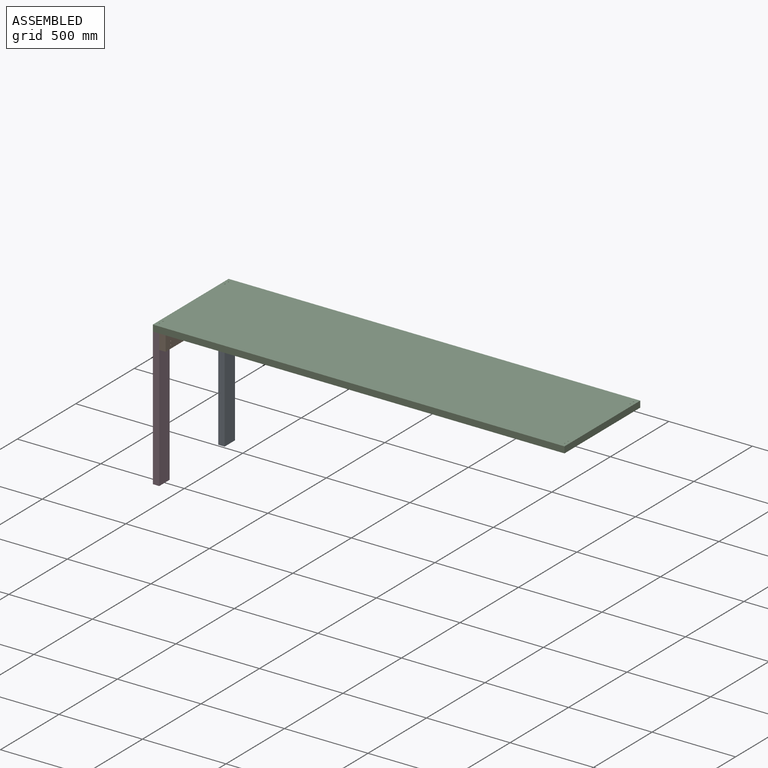
[diagram: assembled view]
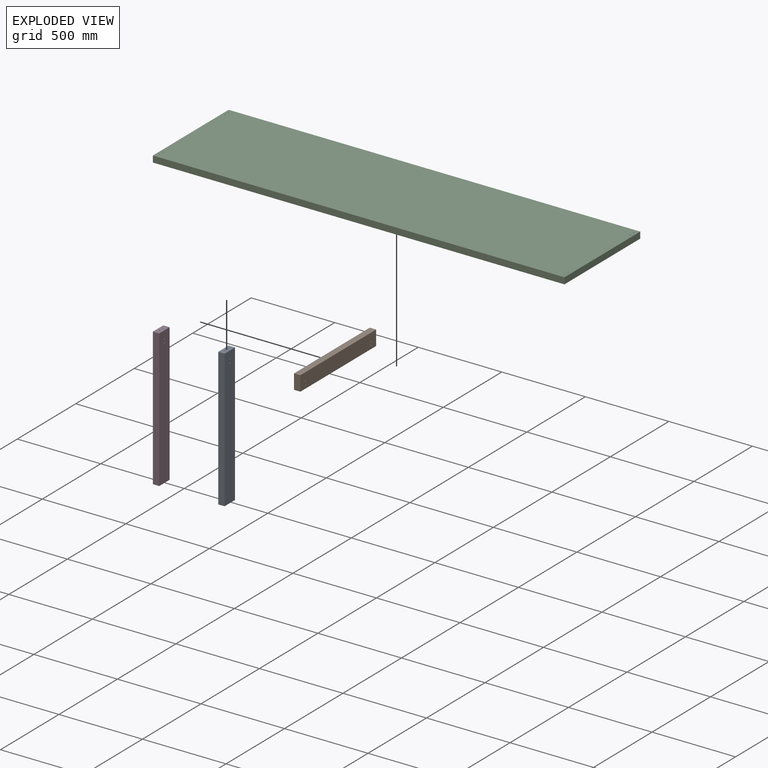
[diagram: exploded view]
GUIDED TOUR — MATED ASSEMBLY (Onshape document a96cc10d83abf65ffa4fd4cf, AutoMate assembly a96cc10d83abf65ffa4fd4cf_02e268fd3e05aa0f3158a6e1_424648849228a060c29fd1e6_default)

This assembly has 4 components, labeled P0..P3 below (a component is one placed occurrence of a part; the same part can appear more than once), held together by 5 mates. A mate is a constraint between two components; its type names the relative motion it leaves free:
  REVOLUTE — leaves rotation about the listed axis free (a hinge).
Axis/direction vectors are unit vectors and 'through' points are millimeter coordinates, both in the assembly's world frame.

MATES
  1. REVOLUTE "Revolute 4": P0 <-> P2, axis (0.000, 0.000, 1.000) through (-1188.94, 432.31, -49.95) mm
  2. REVOLUTE "Revolute 3": P0 <-> P2, axis (0.000, 0.000, 1.000) through (-1188.94, 402.68, -49.95) mm
  3. REVOLUTE "Revolute 1": P3 <-> P2, axis (0.000, 0.000, 1.000) through (-1188.94, -156.12, -49.95) mm
  4. REVOLUTE "Revolute 2": P3 <-> P2, axis (0.000, 0.000, 1.000) through (-1188.94, -126.49, -49.95) mm
  5. REVOLUTE "Revolute 5": P1 <-> P0, axis (-1.000, 0.000, 0.000) through (-1169.89, 417.49, -96.52) mm

ASSEMBLY ORDER
  1. P3 — the base component [order verified]
  2. P0 [order verified]
  3. P1 [order verified]
  4. P2 [order verified]
Order-tag legend:
  [order verified] — this step's position reverses a verified removal order: the component was checked to insert without passing through the ones already placed.

Of the 4 components, 2 carry the full construction recipe — the FeatureScript program that regenerates the part's solid from scratch; the rest are supplied as boundary geometry only.
Each toured component is shown spotlighted twice — in the assembled view, then in the exploded view, where a leader line traces a displaced component back to its assembled socket (saturated green if recipe-attached, orange if geometry-only; every other component desaturated gray) — followed by its recipe or geometry summary and the mates that hold it.
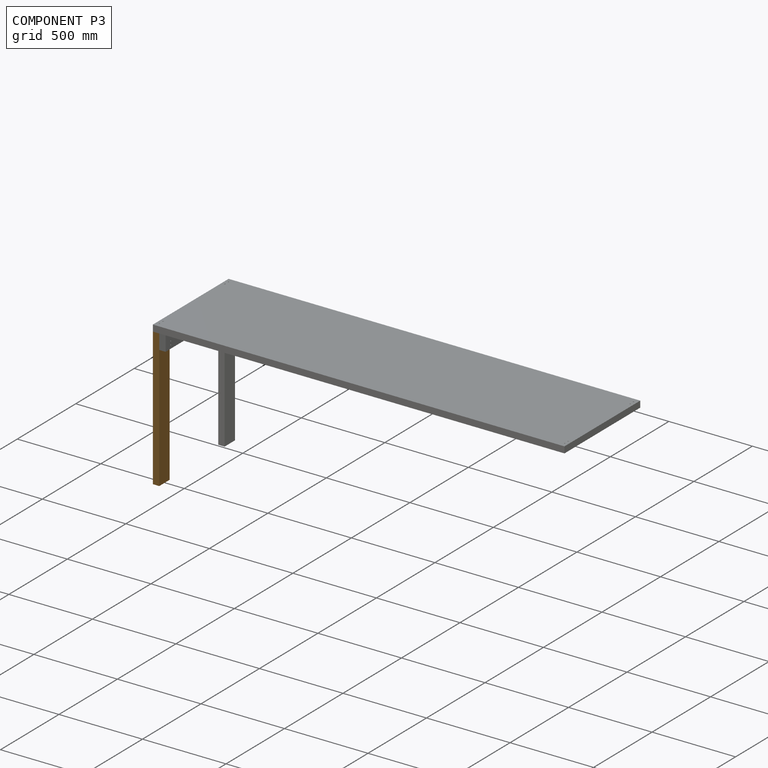
[diagram: component P3 — assembled]
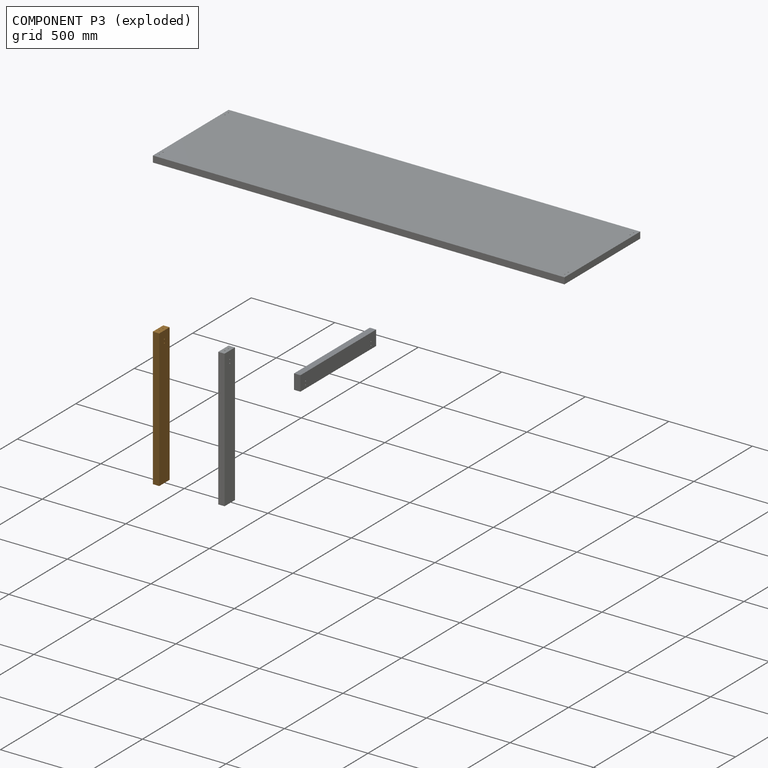
[diagram: component P3 — exploded]
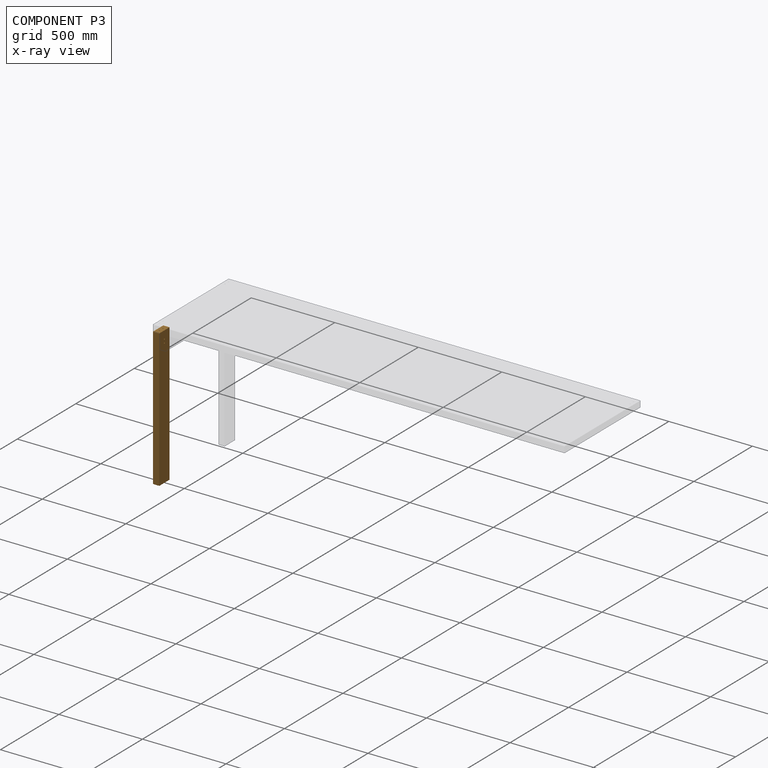
[diagram: component P3 — x-ray view]
COMPONENT P3 — geometry summary (no construction recipe available for this part):
  bounding box: 825.5 x 88.9 x 38.1 mm
  B-rep topology: 1 solid, 12 faces, 48 edges
  volume: 2791693 mm^3 (100% of its bounding box)
  symmetry: 2-fold rotationally symmetric about the z axis; mirror-symmetric across its x mid-plane, y mid-plane
Held by: REVOLUTE mate "Revolute 1" to P2; REVOLUTE mate "Revolute 2" to P2.
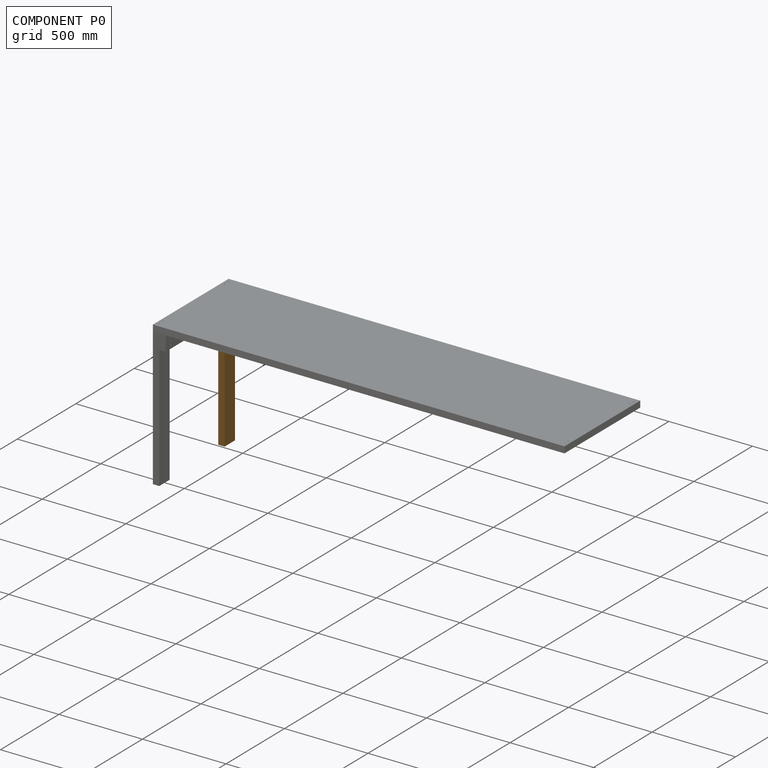
[diagram: component P0 — assembled]
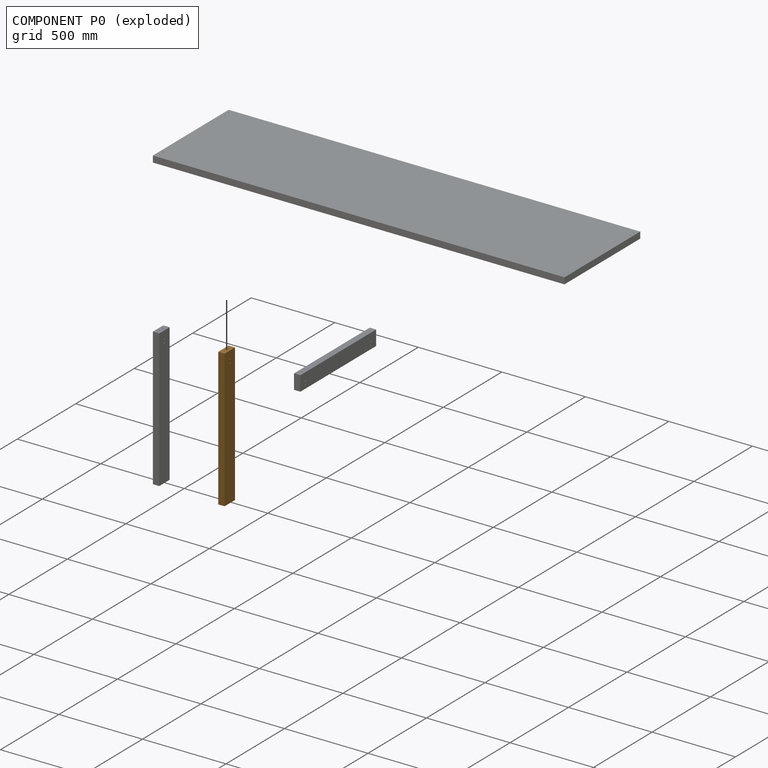
[diagram: component P0 — exploded]
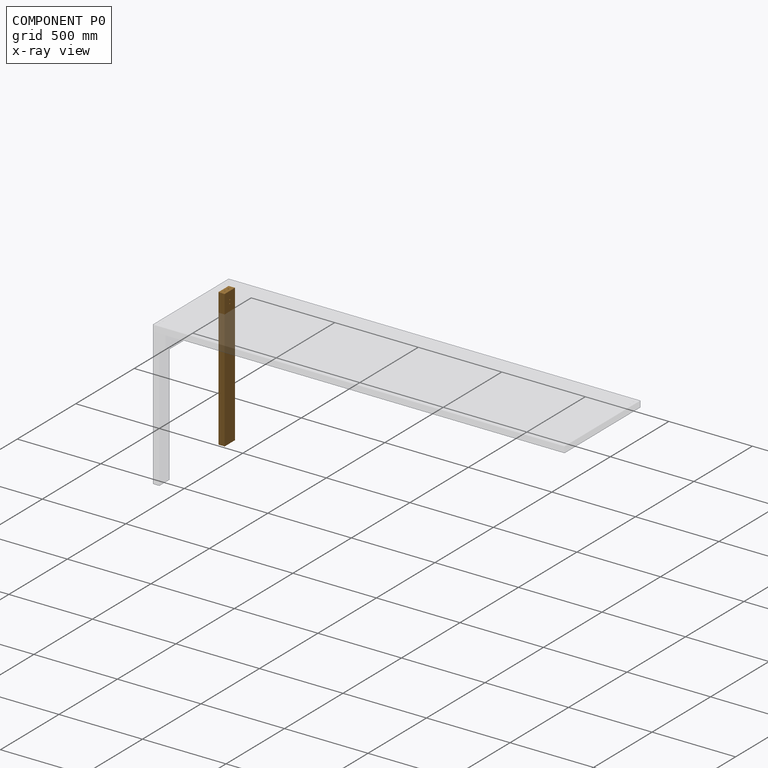
[diagram: component P0 — x-ray view]
COMPONENT P0 — geometry summary (no construction recipe available for this part):
  bounding box: 825.5 x 88.9 x 38.1 mm
  B-rep topology: 1 solid, 12 faces, 48 edges
  volume: 2791693 mm^3 (100% of its bounding box)
  symmetry: 2-fold rotationally symmetric about the z axis; mirror-symmetric across its x mid-plane, y mid-plane
Held by: REVOLUTE mate "Revolute 4" to P2; REVOLUTE mate "Revolute 3" to P2; REVOLUTE mate "Revolute 5" to P1.
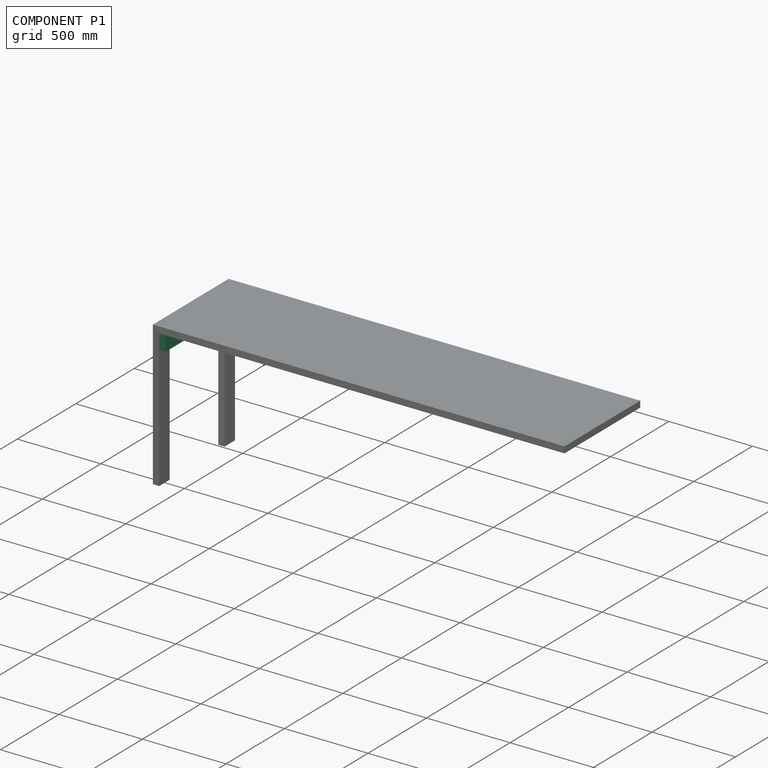
[diagram: component P1 — assembled]
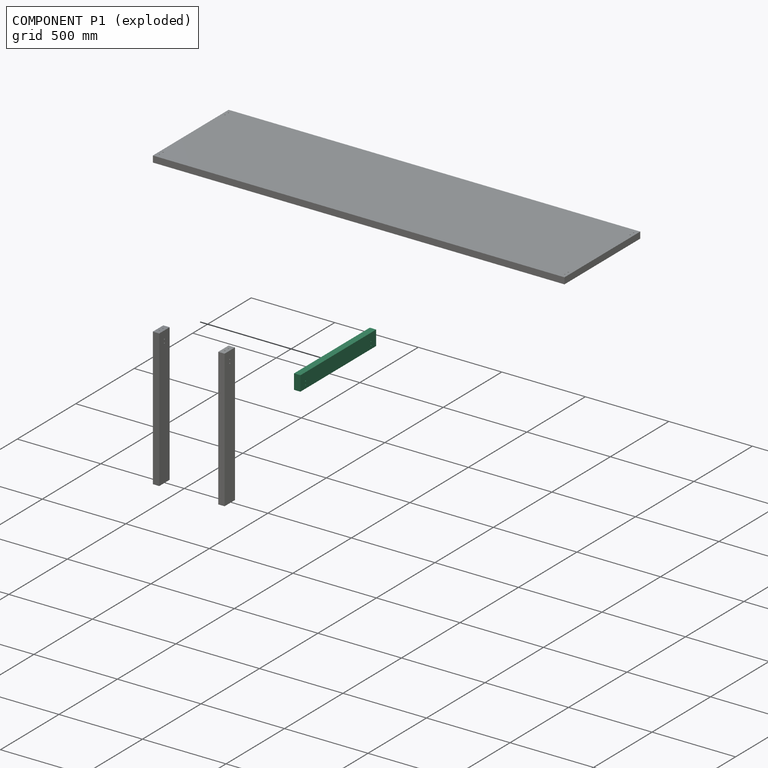
[diagram: component P1 — exploded]
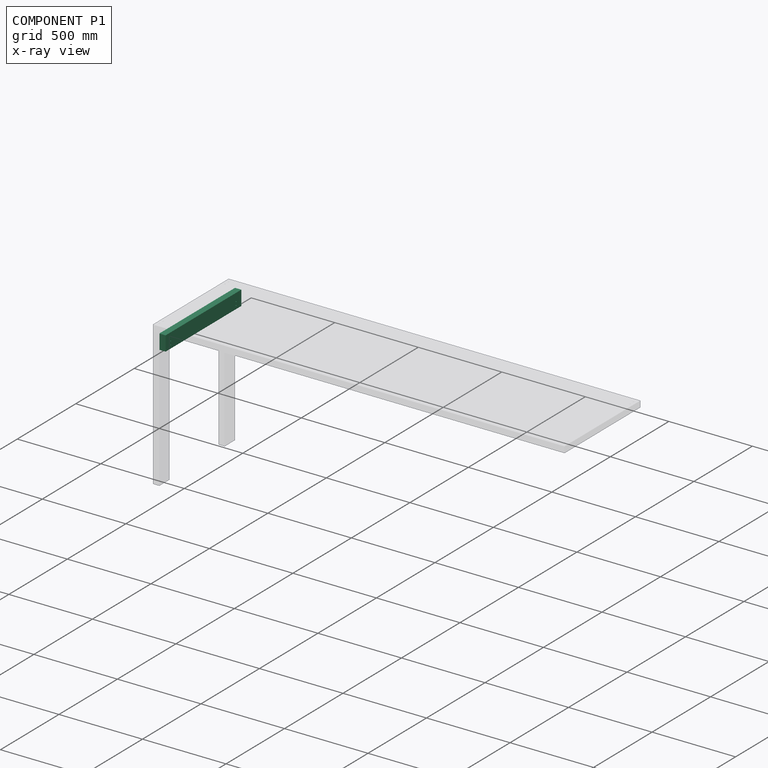
[diagram: component P1 — x-ray view]
COMPONENT P1 — recipe-attached (CADFS 00856207, mesh-verified: the recipe's output STEP matches this component's geometry to below the mesh-comparison resolution (tessellation chordal tolerance ~0.982 mm)).
Held by: REVOLUTE mate "Revolute 5" to P0.
Construction recipe (FeatureScript — the CAD program that rebuilds this solid; sketch coordinates are in the units given by the * unit suffixes, e.g. mm):

FeatureScript 1511;
import(path : "onshape/std/geometry.fs", version : "1511.0");
import(path : "onshape/std/common.fs", version : "1511.0");
const mm = millimeter;
const VERTEX = EntityType.VERTEX;
const EDGE = EntityType.EDGE;
const FACE = EntityType.FACE;
const BODY = EntityType.BODY;
function v(x, y){return vector(x, y);}
function OD(order){return orderDisambiguation(order);}
function OSD(set){return originalSetDisambiguation(set);}
function TD(topology){return topologyDisambiguation(topology);}
function TDD(query){return trueDependencyDisambiguation(query);}
function sQuery(a, b, c) {return sketchEntityQuery(a, b, c);}

annotation { "Feature Type Name" : "Feature", "Feature Type Description" : "" }
export const myFeature = defineFeature(function(context is Context, id is Id, definition is map)
    precondition{}
    {
        {
            var Q0;
            Q0=qCreatedBy(makeId("Front.planeOp"),FACE);
            var sketch = newSketch(context, id + "F0", { "sketchPlane" : qUnion([Q0])});
            skLineSegment(sketch, "E0.bottom", {"start": v(19.05, 44.45) * mm, "end": v(-19.05, 44.45) * mm});
            skLineSegment(sketch, "E0.top", {"start": v(19.05, -44.45) * mm, "end": v(-19.05, -44.45) * mm});
            skLineSegment(sketch, "E0.left", {"start": v(19.05, 44.45) * mm, "end": v(19.05, -44.45) * mm});
            skLineSegment(sketch, "E0.right", {"start": v(-19.05, 44.45) * mm, "end": v(-19.05, -44.45) * mm});
            skPoint(sketch, "E0.middle", {"position": v(0, 0) * mm});
            skSolve(sketch);
        }
        {
            var Q0;
            Q0=makeQuery(id+"F0.imprint","IMPRINT",FACE,{"disambiguationData":[TD([[makeQuery(id+"F0.imprint","IMPRINT",EDGE,{"derivedFrom":sQuery(id+"F0.wireOp",EDGE,"E0.bottom")}),1.0]])]});
            extrude(context, id + "F1", {"entities" : qUnion([Q0]), "depth" : 647.7 * mm, "offsetDistance" : 25.4 * mm});
        }
        {
            var Q0;
            Q0=makeQuery(id+"F1.opExtrude","SWEPT_FACE",FACE,{"disambiguationData":[OSD([sQuery(id+"F0.wireOp",EDGE,"E0.left")])]});
            var sketch = newSketch(context, id + "F2", { "sketchPlane" : qUnion([Q0])});
            skLineSegment(sketch, "E1", {"start": v(-558.8, 44.45) * mm, "end": v(-558.8, -44.45) * mm, "construction": true});
            skLineSegment(sketch, "E2", {"start": v(-647.7, 19.05) * mm, "end": v(-558.8, 19.05) * mm, "construction": true});
            skLineSegment(sketch, "E3", {"start": v(-603.25, -44.45) * mm, "end": v(-603.25, 19.05) * mm, "construction": true});
            skPoint(sketch, "E3.endSnap0", {"position": v(-603.25, 19.05) * mm});
            skCircle(sketch, "E4", {"center": v(-603.25, -2.12) * mm, "radius": 3.3 * mm});
            skCircle(sketch, "E5", {"center": v(-603.25, -23.28) * mm, "radius": 3.3 * mm});
            skLineSegment(sketch, "E6", {"start": v(-88.9, 44.45) * mm, "end": v(-88.9, -44.45) * mm, "construction": true});
            skLineSegment(sketch, "E7", {"start": v(-88.9, 19.05) * mm, "end": v(0, 19.05) * mm, "construction": true});
            skLineSegment(sketch, "E8", {"start": v(-44.45, 19.05) * mm, "end": v(-44.45, -44.45) * mm, "construction": true});
            skCircle(sketch, "E9", {"center": v(-44.45, -23.28) * mm, "radius": 3.3 * mm});
            skCircle(sketch, "E10", {"center": v(-44.45, -2.12) * mm, "radius": 3.3 * mm});
            skSolve(sketch);
        }
        {
            var Q0;
            Q0 = qSketchRegion(id + "F2", true);
            extrude(context, id + "F3", {"entities" : qUnion([Q0]), "operationType" : NewBodyOperationType.REMOVE, "endBound" : BoundingType.THROUGH_ALL, "oppositeDirection" : true, "depth" : 25.4 * mm, "offsetDistance" : 25.4 * mm});
        }
    });
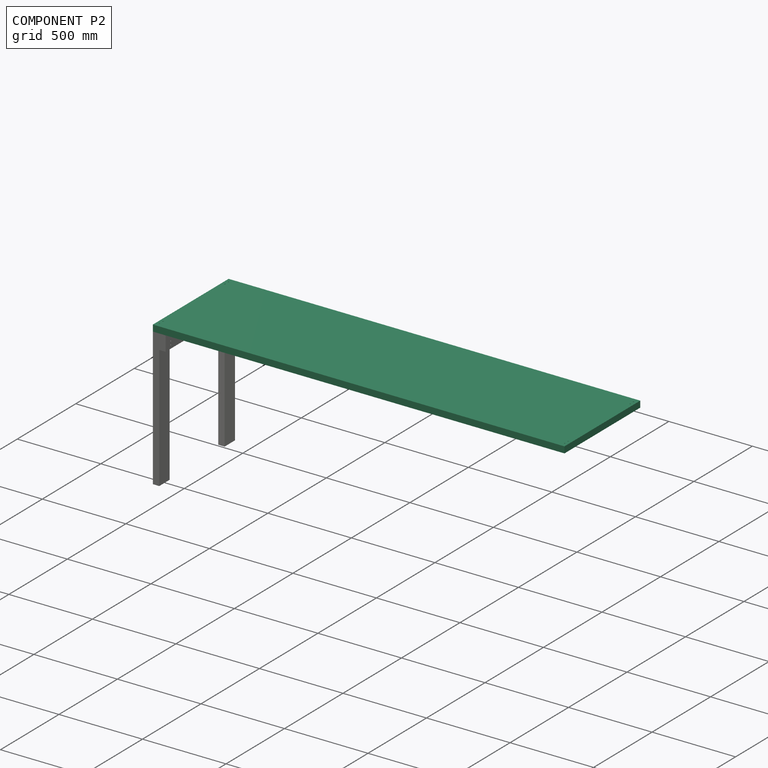
[diagram: component P2 — assembled]
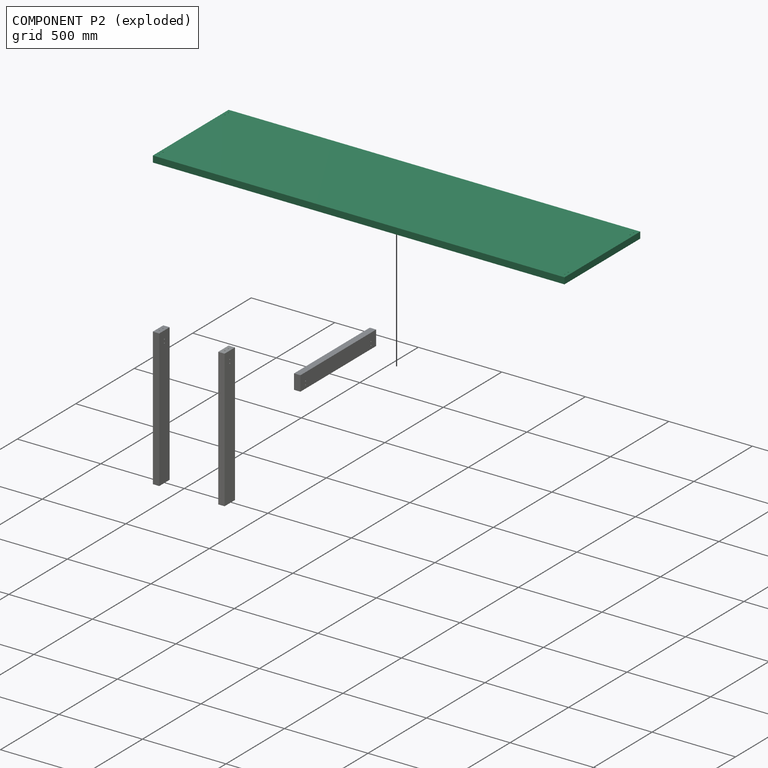
[diagram: component P2 — exploded]
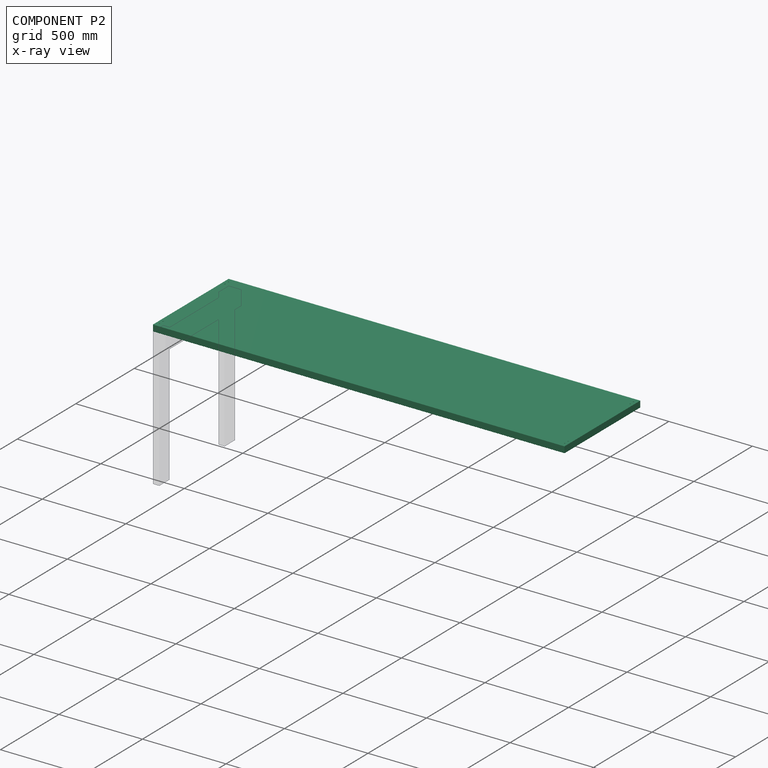
[diagram: component P2 — x-ray view]
COMPONENT P2 — recipe-attached (CADFS 00855651, mesh-verified: the recipe's output STEP matches this component's geometry to below the mesh-comparison resolution (tessellation chordal tolerance ~3.82 mm)).
Held by: REVOLUTE mate "Revolute 4" to P0; REVOLUTE mate "Revolute 3" to P0; REVOLUTE mate "Revolute 1" to P3; REVOLUTE mate "Revolute 2" to P3.
Construction recipe (FeatureScript — the CAD program that rebuilds this solid; sketch coordinates are in the units given by the * unit suffixes, e.g. mm):

FeatureScript 1511;
import(path : "onshape/std/geometry.fs", version : "1511.0");
import(path : "onshape/std/common.fs", version : "1511.0");
const mm = millimeter;
const VERTEX = EntityType.VERTEX;
const EDGE = EntityType.EDGE;
const FACE = EntityType.FACE;
const BODY = EntityType.BODY;
function v(x, y){return vector(x, y);}
function OD(order){return orderDisambiguation(order);}
function OSD(set){return originalSetDisambiguation(set);}
function TD(topology){return topologyDisambiguation(topology);}
function TDD(query){return trueDependencyDisambiguation(query);}
function sQuery(a, b, c) {return sketchEntityQuery(a, b, c);}

annotation { "Feature Type Name" : "Feature", "Feature Type Description" : "" }
export const myFeature = defineFeature(function(context is Context, id is Id, definition is map)
    precondition{}
    {
        {
            var Q0;
            Q0=qCreatedBy(makeId("Top.planeOp"),FACE);
            var sketch = newSketch(context, id + "F0", { "sketchPlane" : qUnion([Q0])});
            skLineSegment(sketch, "E0.bottom", {"start": v(1231.9, 323.85) * mm, "end": v(-1231.9, 323.85) * mm});
            skLineSegment(sketch, "E0.top", {"start": v(1231.9, -323.85) * mm, "end": v(-1231.9, -323.85) * mm});
            skLineSegment(sketch, "E0.left", {"start": v(1231.9, 323.85) * mm, "end": v(1231.9, -323.85) * mm});
            skLineSegment(sketch, "E0.right", {"start": v(-1231.9, 323.85) * mm, "end": v(-1231.9, -323.85) * mm});
            skPoint(sketch, "E0.middle", {"position": v(0, 0) * mm});
            skSolve(sketch);
        }
        {
            var Q0;
            Q0=makeQuery(id+"F0.imprint","IMPRINT",FACE,{"disambiguationData":[TD([[makeQuery(id+"F0.imprint","IMPRINT",EDGE,{"derivedFrom":sQuery(id+"F0.wireOp",EDGE,"E0.bottom")}),1.0]])]});
            extrude(context, id + "F1", {"entities" : qUnion([Q0]), "depth" : 38.1 * mm, "offsetDistance" : 25.4 * mm});
        }
        {
            var Q0;
            Q0=makeQuery(id+"F1.opExtrude","CAP_FACE",FACE,{"disambiguationData":[OSD([sQuery(id+"F0.wireOp",EDGE,"E0.bottom"),sQuery(id+"F0.wireOp",EDGE,"E0.top"),sQuery(id+"F0.wireOp",EDGE,"E0.left"),sQuery(id+"F0.wireOp",EDGE,"E0.right")])],"isStart":false});
            var sketch = newSketch(context, id + "F2", { "sketchPlane" : qUnion([Q0])});
            skLineSegment(sketch, "E1", {"start": v(-1231.9, 234.95) * mm, "end": v(1231.9, 234.95) * mm, "construction": true});
            skLineSegment(sketch, "E2", {"start": v(1231.9, -234.95) * mm, "end": v(-1231.9, -234.95) * mm, "construction": true});
            skLineSegment(sketch, "E3", {"start": v(-1193.8, 323.85) * mm, "end": v(-1193.8, -323.85) * mm, "construction": true});
            skLineSegment(sketch, "E4", {"start": v(1193.8, 323.85) * mm, "end": v(1193.8, -323.85) * mm, "construction": true});
            skLineSegment(sketch, "E5", {"start": v(-1212.85, 323.85) * mm, "end": v(-1212.85, -323.85) * mm, "construction": true});
            skLineSegment(sketch, "E6", {"start": v(1212.85, 323.85) * mm, "end": v(1212.85, -323.85) * mm, "construction": true});
            skLineSegment(sketch, "E7", {"start": v(-1231.9, 294.22) * mm, "end": v(1231.9, 294.22) * mm, "construction": true});
            skLineSegment(sketch, "E8", {"start": v(-1231.9, 264.58) * mm, "end": v(1231.9, 264.58) * mm, "construction": true});
            skCircle(sketch, "E9", {"center": v(-1212.85, 294.22) * mm, "radius": 3.3 * mm});
            skCircle(sketch, "E10", {"center": v(-1212.85, 264.58) * mm, "radius": 3.3 * mm});
            skCircle(sketch, "E11", {"center": v(1212.85, 294.22) * mm, "radius": 3.3 * mm});
            skCircle(sketch, "E12", {"center": v(1212.85, 264.58) * mm, "radius": 3.3 * mm});
            skLineSegment(sketch, "E13", {"start": v(-1231.9, -264.58) * mm, "end": v(1231.9, -264.58) * mm, "construction": true});
            skLineSegment(sketch, "E14", {"start": v(1231.9, -294.22) * mm, "end": v(-1231.9, -294.22) * mm, "construction": true});
            skCircle(sketch, "E15", {"center": v(-1212.85, -264.58) * mm, "radius": 3.3 * mm});
            skCircle(sketch, "E16", {"center": v(-1212.85, -294.22) * mm, "radius": 3.3 * mm});
            skCircle(sketch, "E17", {"center": v(1212.85, -264.58) * mm, "radius": 3.3 * mm});
            skCircle(sketch, "E18", {"center": v(1212.85, -294.22) * mm, "radius": 3.3 * mm});
            skSolve(sketch);
        }
        {
            var Q0;
            Q0 = qSketchRegion(id + "F2", true);
            extrude(context, id + "F3", {"entities" : qUnion([Q0]), "operationType" : NewBodyOperationType.REMOVE, "endBound" : BoundingType.THROUGH_ALL, "oppositeDirection" : true, "depth" : 25.4 * mm, "offsetDistance" : 25.4 * mm});
        }
    });
PROVENANCE & LICENSES
Assembly (occurrences, transforms, mates, per-part STEP geometry): AutoMate dataset, Zenodo record 7776208, CC0.
Construction recipes: CADFS (HuggingFace VladPyatov/CADFS, CC-BY-4.0, layered over the ABC dataset), FeatureScript reconstruction programs keyed by ABC model id.
Join: ABC meta listings map ABC model id -> Onshape documentId; within a shared document, parts are matched by geometric signature (bounding-box dims + volume at 0.1% relative tolerance, exact B-rep face/solid counts).
Verification: 2 of this assembly's 4 components carry a recipe attachment, and every attachment is mesh-verified: the CADFS STEP and the AutoMate member STEP were compared as meshes in their shared local frame (symmetric sampled-point-to-mesh distance); worst across the 2 attachments: below the mesh-comparison resolution (tessellation chordal tolerance ~3.82 mm) on a 2548 mm part.
Renders: orthographic iso camera (az 35 / el 25); the floor grid conveys scale (grid pitch printed in each image; no ruler). In the exploded view each component is displaced by its stored offset vector: the offsets alone carry the explosion direction (mate normal/axis signs are not orientation cues and do not encode it), and separation distances are assigned per mate-chain, not proportionally to assembly-order depth.
